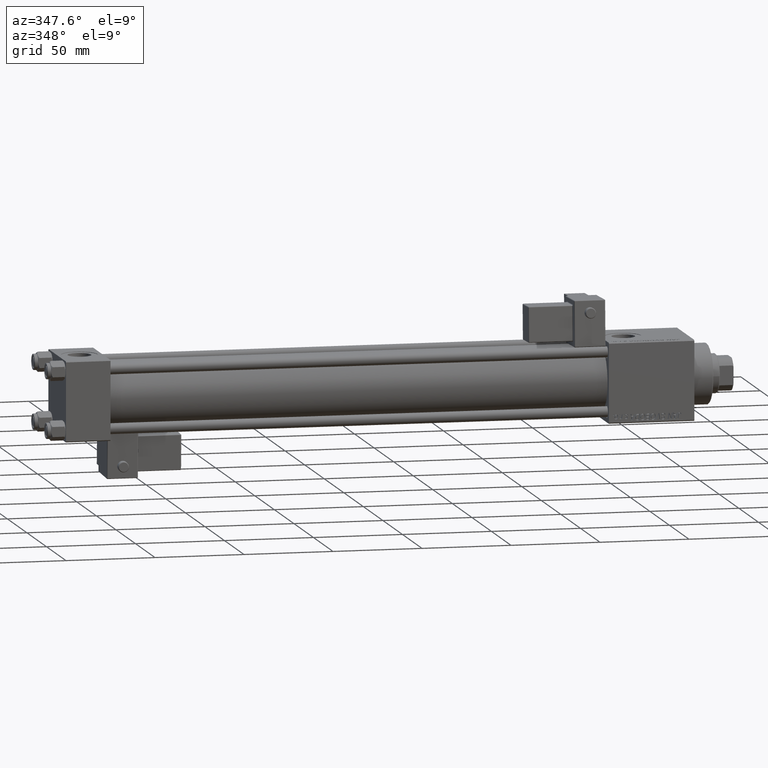
[diagram: clean part render]
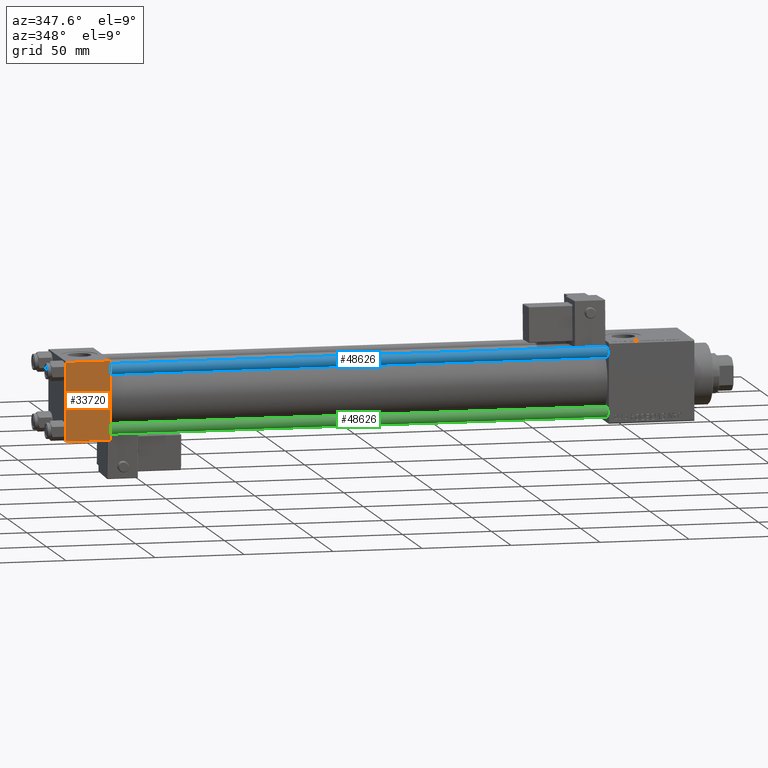
[diagram: same view with three faces highlighted in distinct colors, each labeled with its STEP entity id]
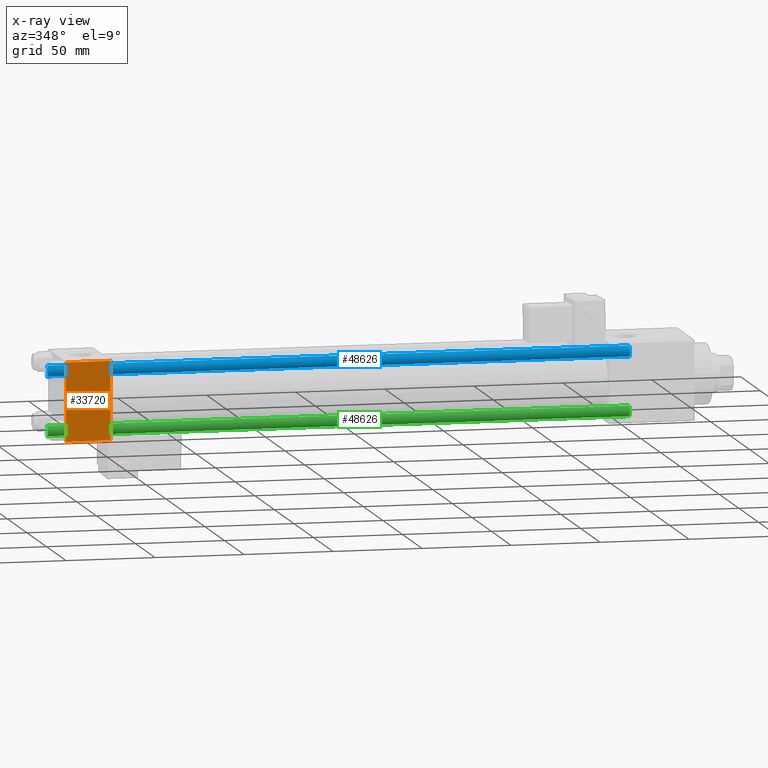
[diagram: x-ray of the same camera — body ghosted, the three highlighted faces saturated]
A machine part, auxiliary view with three faces highlighted in distinct colors.
The next image is the same camera in x-ray (body ghosted, the three faces saturated) — at least one of them is partly hidden behind the body in this view.
Their STEP definitions:

[orange] entity #33720 — the highlighted planar face has unit normal (0, 1, 0).
#509 = VERTEX_POINT ( 'NONE', #14131 ) ;
#3400 = VECTOR ( 'NONE', #45050, 1000.000000000000000 ) ;
#4758 = DIRECTION ( 'NONE',  ( 1.000000000000000000, 0.000000000000000000, 0.000000000000000000 ) ) ;
#4761 = VECTOR ( 'NONE', #7766, 1000.000000000000000 ) ;
#6236 = EDGE_LOOP ( 'NONE', ( #11109, #31506, #41029, #13437 ) ) ;
#6977 = CARTESIAN_POINT ( 'NONE',  ( 25.00000000000000000, -22.50000000000000000, -21.99999999999997158 ) ) ;
#7766 = DIRECTION ( 'NONE',  ( -1.000000000000000000, 0.000000000000000000, 0.000000000000000000 ) ) ;
#9797 = DIRECTION ( 'NONE',  ( -0.000000000000000000, 1.000000000000000000, 0.000000000000000000 ) ) ;
#10062 = CARTESIAN_POINT ( 'NONE',  ( 25.00000000000000000, -22.50000000000000000, 22.50000000000000000 ) ) ;
#11109 = ORIENTED_EDGE ( 'NONE', *, *, #31759, .T. ) ;
#11610 = CARTESIAN_POINT ( 'NONE',  ( 25.00000000000000000, -22.50000000000000000, 22.50000000000000000 ) ) ;
#12315 = LINE ( 'NONE', #29733, #39998 ) ;
#12377 = LINE ( 'NONE', #17258, #4761 ) ;
#13424 = VECTOR ( 'NONE', #4758, 1000.000000000000000 ) ;
#13437 = ORIENTED_EDGE ( 'NONE', *, *, #51619, .T. ) ;
#14131 = CARTESIAN_POINT ( 'NONE',  ( 25.00000000000000000, -22.50000000000000000, 22.00000000000000000 ) ) ;
#16126 = CARTESIAN_POINT ( 'NONE',  ( 0.000000000000000000, -22.50000000000000000, 22.00000000000000000 ) ) ;
#17258 = CARTESIAN_POINT ( 'NONE',  ( 25.00000000000000000, -22.50000000000000000, 22.00000000000000000 ) ) ;
#17741 = VERTEX_POINT ( 'NONE', #16126 ) ;
#21664 = AXIS2_PLACEMENT_3D ( 'NONE', #10062, #9797, #47309 ) ;
#23148 = VERTEX_POINT ( 'NONE', #6977 ) ;
#26948 = PLANE ( 'NONE',  #21664 ) ;
#28667 = DIRECTION ( 'NONE',  ( 0.000000000000000000, 0.000000000000000000, -1.000000000000000000 ) ) ;
#29265 = EDGE_CURVE ( 'NONE', #509, #23148, #31767, .T. ) ;
#29733 = CARTESIAN_POINT ( 'NONE',  ( 0.000000000000000000, -22.50000000000000000, 22.50000000000000000 ) ) ;
#29970 = FACE_OUTER_BOUND ( 'NONE', #6236, .T. ) ;
#31506 = ORIENTED_EDGE ( 'NONE', *, *, #48044, .T. ) ;
#31759 = EDGE_CURVE ( 'NONE', #17741, #51716, #12315, .T. ) ;
#31767 = LINE ( 'NONE', #11610, #3400 ) ;
#33720 = ADVANCED_FACE ( 'NONE', ( #29970 ), #26948, .F. ) ;
#38742 = CARTESIAN_POINT ( 'NONE',  ( 0.000000000000000000, -22.50000000000000000, -21.99999999999997158 ) ) ;
#39998 = VECTOR ( 'NONE', #28667, 1000.000000000000000 ) ;
#41029 = ORIENTED_EDGE ( 'NONE', *, *, #29265, .F. ) ;
#41737 = LINE ( 'NONE', #42270, #13424 ) ;
#42270 = CARTESIAN_POINT ( 'NONE',  ( 25.00000000000000000, -22.50000000000000000, -21.99999999999998579 ) ) ;
#45050 = DIRECTION ( 'NONE',  ( 0.000000000000000000, 0.000000000000000000, -1.000000000000000000 ) ) ;
#47309 = DIRECTION ( 'NONE',  ( 0.000000000000000000, -0.000000000000000000, 1.000000000000000000 ) ) ;
#48044 = EDGE_CURVE ( 'NONE', #51716, #23148, #41737, .T. ) ;
#51619 = EDGE_CURVE ( 'NONE', #509, #17741, #12377, .T. ) ;
#51716 = VERTEX_POINT ( 'NONE', #38742 ) ;

[blue] entity #48626 — the highlighted cylindrical surface (edge-blend (fillet) strip) has radius 3 mm, axis along (1, 0, -0).
#917 = DIRECTION ( 'NONE',  ( -0.000000000000000000, -0.000000000000000000, -1.000000000000000000 ) ) ;
#3912 = CIRCLE ( 'NONE', #22159, 3.000000000000000444 ) ;
#4402 = CARTESIAN_POINT ( 'NONE',  ( -3.000000000000000444, 0.000000000000000000, 0.5000000000000559552 ) ) ;
#5334 = EDGE_CURVE ( 'NONE', #37294, #16244, #46297, .T. ) ;
#6030 = CYLINDRICAL_SURFACE ( 'NONE', #17768, 3.000000000000000444 ) ;
#6543 = VERTEX_POINT ( 'NONE', #4402 ) ;
#6656 = CIRCLE ( 'NONE', #30028, 3.000000000000000444 ) ;
#12300 = VECTOR ( 'NONE', #917, 1000.000000000000000 ) ;
#13934 = FACE_OUTER_BOUND ( 'NONE', #28248, .T. ) ;
#16244 = VERTEX_POINT ( 'NONE', #31228 ) ;
#17768 = AXIS2_PLACEMENT_3D ( 'NONE', #22629, #30546, #47082 ) ;
#20096 = EDGE_CURVE ( 'NONE', #50629, #37294, #6656, .T. ) ;
#22159 = AXIS2_PLACEMENT_3D ( 'NONE', #23023, #35274, #36547 ) ;
#22629 = CARTESIAN_POINT ( 'NONE',  ( 0.000000000000000000, 0.000000000000000000, 328.0000000000000000 ) ) ;
#23023 = CARTESIAN_POINT ( 'NONE',  ( 0.000000000000000000, 0.000000000000000000, 0.5000000000000559552 ) ) ;
#23545 = CARTESIAN_POINT ( 'NONE',  ( 0.000000000000000000, 0.000000000000000000, 327.5000000000000000 ) ) ;
#28248 = EDGE_LOOP ( 'NONE', ( #47118, #46070, #42145, #38255 ) ) ;
#30028 = AXIS2_PLACEMENT_3D ( 'NONE', #23545, #32803, #36601 ) ;
#30546 = DIRECTION ( 'NONE',  ( -0.000000000000000000, -0.000000000000000000, -1.000000000000000000 ) ) ;
#31228 = CARTESIAN_POINT ( 'NONE',  ( 3.000000000000000444, 3.673940397442060361E-16, 0.5000000000000559552 ) ) ;
#32803 = DIRECTION ( 'NONE',  ( 0.000000000000000000, 0.000000000000000000, -1.000000000000000000 ) ) ;
#33133 = VECTOR ( 'NONE', #39604, 1000.000000000000000 ) ;
#35274 = DIRECTION ( 'NONE',  ( -0.000000000000000000, -0.000000000000000000, 1.000000000000000000 ) ) ;
#36547 = DIRECTION ( 'NONE',  ( 1.000000000000000000, 0.000000000000000000, 0.000000000000000000 ) ) ;
#36601 = DIRECTION ( 'NONE',  ( 1.000000000000000000, 0.000000000000000000, 0.000000000000000000 ) ) ;
#36857 = CARTESIAN_POINT ( 'NONE',  ( -3.000000000000000444, 0.000000000000000000, 327.5000000000000000 ) ) ;
#37294 = VERTEX_POINT ( 'NONE', #43097 ) ;
#38255 = ORIENTED_EDGE ( 'NONE', *, *, #41013, .F. ) ;
#38340 = CARTESIAN_POINT ( 'NONE',  ( -3.000000000000000444, 0.000000000000000000, 328.0000000000000000 ) ) ;
#39604 = DIRECTION ( 'NONE',  ( -0.000000000000000000, -0.000000000000000000, -1.000000000000000000 ) ) ;
#41013 = EDGE_CURVE ( 'NONE', #50629, #6543, #44195, .T. ) ;
#42145 = ORIENTED_EDGE ( 'NONE', *, *, #52653, .T. ) ;
#43097 = CARTESIAN_POINT ( 'NONE',  ( 3.000000000000000444, 3.673940397442060361E-16, 327.5000000000000000 ) ) ;
#44195 = LINE ( 'NONE', #38340, #33133 ) ;
#46070 = ORIENTED_EDGE ( 'NONE', *, *, #5334, .T. ) ;
#46297 = LINE ( 'NONE', #50129, #12300 ) ;
#47082 = DIRECTION ( 'NONE',  ( -1.000000000000000000, 0.000000000000000000, 0.000000000000000000 ) ) ;
#47118 = ORIENTED_EDGE ( 'NONE', *, *, #20096, .T. ) ;
#48626 = ADVANCED_FACE ( 'NONE', ( #13934 ), #6030, .T. ) ;
#50129 = CARTESIAN_POINT ( 'NONE',  ( 3.000000000000000444, 3.673940397442060361E-16, 328.0000000000000000 ) ) ;
#50629 = VERTEX_POINT ( 'NONE', #36857 ) ;
#52653 = EDGE_CURVE ( 'NONE', #16244, #6543, #3912, .T. ) ;

[green] entity #48626 — the highlighted cylindrical surface (edge-blend (fillet) strip) has radius 3 mm, axis along (-1, -0, -0).
#917 = DIRECTION ( 'NONE',  ( -0.000000000000000000, -0.000000000000000000, -1.000000000000000000 ) ) ;
#3912 = CIRCLE ( 'NONE', #22159, 3.000000000000000444 ) ;
#4402 = CARTESIAN_POINT ( 'NONE',  ( -3.000000000000000444, 0.000000000000000000, 0.5000000000000559552 ) ) ;
#5334 = EDGE_CURVE ( 'NONE', #37294, #16244, #46297, .T. ) ;
#6030 = CYLINDRICAL_SURFACE ( 'NONE', #17768, 3.000000000000000444 ) ;
#6543 = VERTEX_POINT ( 'NONE', #4402 ) ;
#6656 = CIRCLE ( 'NONE', #30028, 3.000000000000000444 ) ;
#12300 = VECTOR ( 'NONE', #917, 1000.000000000000000 ) ;
#13934 = FACE_OUTER_BOUND ( 'NONE', #28248, .T. ) ;
#16244 = VERTEX_POINT ( 'NONE', #31228 ) ;
#17768 = AXIS2_PLACEMENT_3D ( 'NONE', #22629, #30546, #47082 ) ;
#20096 = EDGE_CURVE ( 'NONE', #50629, #37294, #6656, .T. ) ;
#22159 = AXIS2_PLACEMENT_3D ( 'NONE', #23023, #35274, #36547 ) ;
#22629 = CARTESIAN_POINT ( 'NONE',  ( 0.000000000000000000, 0.000000000000000000, 328.0000000000000000 ) ) ;
#23023 = CARTESIAN_POINT ( 'NONE',  ( 0.000000000000000000, 0.000000000000000000, 0.5000000000000559552 ) ) ;
#23545 = CARTESIAN_POINT ( 'NONE',  ( 0.000000000000000000, 0.000000000000000000, 327.5000000000000000 ) ) ;
#28248 = EDGE_LOOP ( 'NONE', ( #47118, #46070, #42145, #38255 ) ) ;
#30028 = AXIS2_PLACEMENT_3D ( 'NONE', #23545, #32803, #36601 ) ;
#30546 = DIRECTION ( 'NONE',  ( -0.000000000000000000, -0.000000000000000000, -1.000000000000000000 ) ) ;
#31228 = CARTESIAN_POINT ( 'NONE',  ( 3.000000000000000444, 3.673940397442060361E-16, 0.5000000000000559552 ) ) ;
#32803 = DIRECTION ( 'NONE',  ( 0.000000000000000000, 0.000000000000000000, -1.000000000000000000 ) ) ;
#33133 = VECTOR ( 'NONE', #39604, 1000.000000000000000 ) ;
#35274 = DIRECTION ( 'NONE',  ( -0.000000000000000000, -0.000000000000000000, 1.000000000000000000 ) ) ;
#36547 = DIRECTION ( 'NONE',  ( 1.000000000000000000, 0.000000000000000000, 0.000000000000000000 ) ) ;
#36601 = DIRECTION ( 'NONE',  ( 1.000000000000000000, 0.000000000000000000, 0.000000000000000000 ) ) ;
#36857 = CARTESIAN_POINT ( 'NONE',  ( -3.000000000000000444, 0.000000000000000000, 327.5000000000000000 ) ) ;
#37294 = VERTEX_POINT ( 'NONE', #43097 ) ;
#38255 = ORIENTED_EDGE ( 'NONE', *, *, #41013, .F. ) ;
#38340 = CARTESIAN_POINT ( 'NONE',  ( -3.000000000000000444, 0.000000000000000000, 328.0000000000000000 ) ) ;
#39604 = DIRECTION ( 'NONE',  ( -0.000000000000000000, -0.000000000000000000, -1.000000000000000000 ) ) ;
#41013 = EDGE_CURVE ( 'NONE', #50629, #6543, #44195, .T. ) ;
#42145 = ORIENTED_EDGE ( 'NONE', *, *, #52653, .T. ) ;
#43097 = CARTESIAN_POINT ( 'NONE',  ( 3.000000000000000444, 3.673940397442060361E-16, 327.5000000000000000 ) ) ;
#44195 = LINE ( 'NONE', #38340, #33133 ) ;
#46070 = ORIENTED_EDGE ( 'NONE', *, *, #5334, .T. ) ;
#46297 = LINE ( 'NONE', #50129, #12300 ) ;
#47082 = DIRECTION ( 'NONE',  ( -1.000000000000000000, 0.000000000000000000, 0.000000000000000000 ) ) ;
#47118 = ORIENTED_EDGE ( 'NONE', *, *, #20096, .T. ) ;
#48626 = ADVANCED_FACE ( 'NONE', ( #13934 ), #6030, .T. ) ;
#50129 = CARTESIAN_POINT ( 'NONE',  ( 3.000000000000000444, 3.673940397442060361E-16, 328.0000000000000000 ) ) ;
#50629 = VERTEX_POINT ( 'NONE', #36857 ) ;
#52653 = EDGE_CURVE ( 'NONE', #16244, #6543, #3912, .T. ) ;